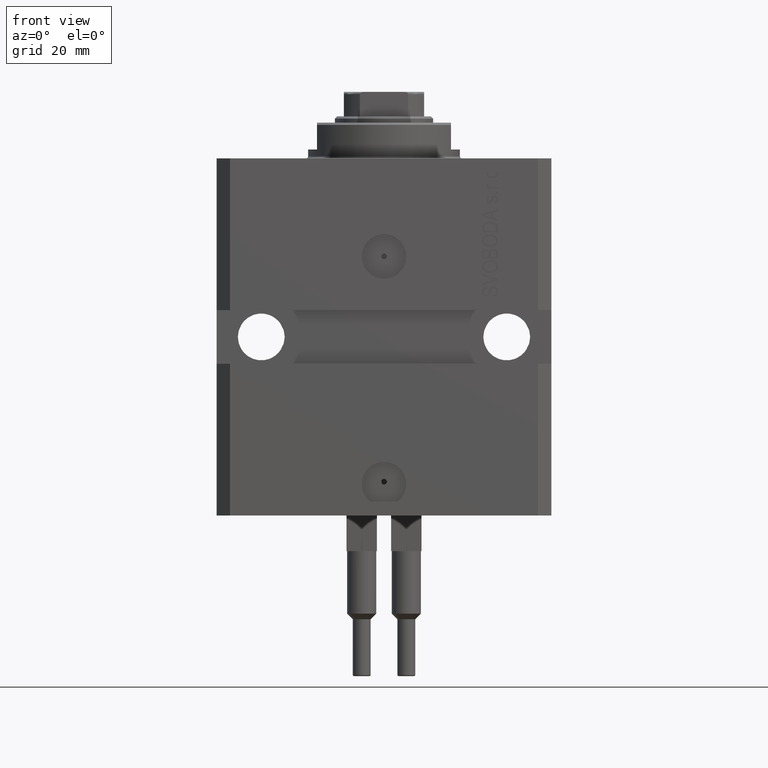
[diagram: clean part render]
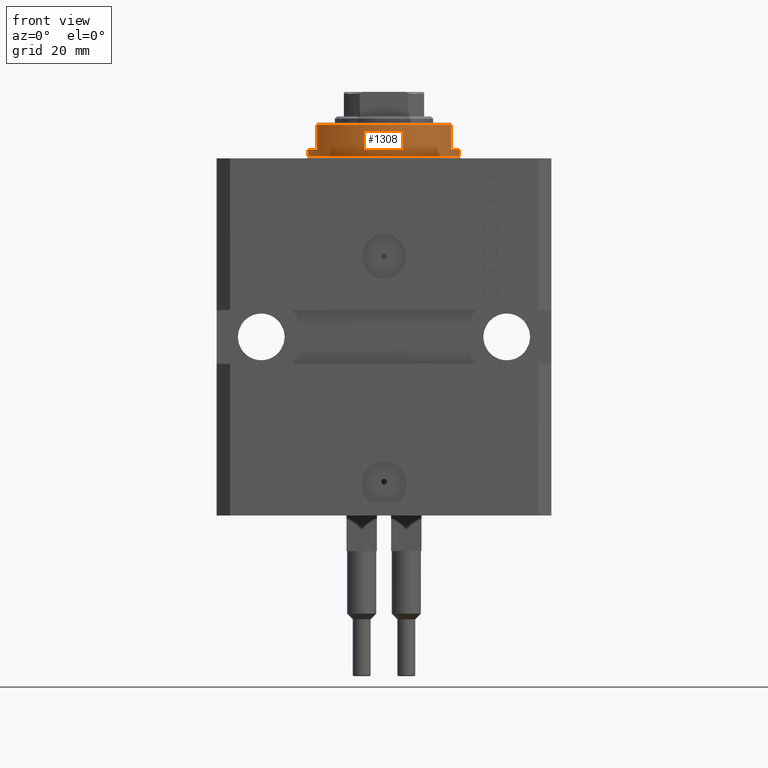
[diagram: same view with one face highlighted and labeled with its STEP entity id]
A machine part, front view. The second image highlights one B-rep face of the part: STEP entity #1308.
In plain terms, the highlighted cylindrical surface (partial cylindrical patch) has radius 17 mm, axis along (0, 0, -1).
Its self-contained STEP definition (entity closure, byte-faithful):
#669 = LINE ( 'NONE', #31038, #7782 ) ;
#781 = CARTESIAN_POINT ( 'NONE',  ( -15.00000000000000000, -8.000000000000001776, -8.000000000000000000 ) ) ;
#1308 = ADVANCED_FACE ( 'NONE', ( #39170 ), #20823, .T. ) ;
#1615 = DIRECTION ( 'NONE',  ( -0.000000000000000000, -0.000000000000000000, 1.000000000000000000 ) ) ;
#4254 = ORIENTED_EDGE ( 'NONE', *, *, #42141, .F. ) ;
#5683 = EDGE_CURVE ( 'NONE', #40005, #19373, #20086, .T. ) ;
#5918 = DIRECTION ( 'NONE',  ( -0.000000000000000000, -0.000000000000000000, 1.000000000000000000 ) ) ;
#7235 = EDGE_CURVE ( 'NONE', #36739, #35097, #35710, .T. ) ;
#7285 = CIRCLE ( 'NONE', #46555, 17.00000000000000000 ) ;
#7782 = VECTOR ( 'NONE', #1615, 1000.000000000000000 ) ;
#8213 = EDGE_CURVE ( 'NONE', #14111, #35097, #12939, .T. ) ;
#8672 = VECTOR ( 'NONE', #30316, 1000.000000000000000 ) ;
#8688 = EDGE_CURVE ( 'NONE', #34956, #14111, #7285, .T. ) ;
#9060 = ORIENTED_EDGE ( 'NONE', *, *, #31347, .T. ) ;
#9279 = ORIENTED_EDGE ( 'NONE', *, *, #42825, .T. ) ;
#9980 = CARTESIAN_POINT ( 'NONE',  ( 15.00000000000000000, -8.000000000000001776, -7.500000000000013323 ) ) ;
#10228 = ORIENTED_EDGE ( 'NONE', *, *, #43642, .F. ) ;
#10239 = DIRECTION ( 'NONE',  ( 1.000000000000000000, 0.000000000000000000, 0.000000000000000000 ) ) ;
#11685 = AXIS2_PLACEMENT_3D ( 'NONE', #16878, #39088, #16186 ) ;
#12097 = LINE ( 'NONE', #781, #34786 ) ;
#12939 = LINE ( 'NONE', #20617, #38076 ) ;
#13922 = CARTESIAN_POINT ( 'NONE',  ( 17.00000000000000000, 0.000000000000000000, -0.5000000000000004441 ) ) ;
#14111 = VERTEX_POINT ( 'NONE', #15958 ) ;
#14468 = CARTESIAN_POINT ( 'NONE',  ( -17.00000000000000000, 2.081899558550500280E-15, -0.5000000000000004441 ) ) ;
#15587 = CARTESIAN_POINT ( 'NONE',  ( 15.00000000000000000, -8.000000000000001776, -8.000000000000000000 ) ) ;
#15958 = CARTESIAN_POINT ( 'NONE',  ( -17.00000000000000000, 2.081899558550500280E-15, -2.000000000000000000 ) ) ;
#16186 = DIRECTION ( 'NONE',  ( -1.000000000000000000, 0.000000000000000000, 0.000000000000000000 ) ) ;
#16190 = DIRECTION ( 'NONE',  ( -1.000000000000000000, 0.000000000000000000, 0.000000000000000000 ) ) ;
#16742 = DIRECTION ( 'NONE',  ( -0.000000000000000000, -0.000000000000000000, -1.000000000000000000 ) ) ;
#16878 = CARTESIAN_POINT ( 'NONE',  ( 0.000000000000000000, 0.000000000000000000, -2.000000000000000000 ) ) ;
#19373 = VERTEX_POINT ( 'NONE', #9980 ) ;
#20086 = CIRCLE ( 'NONE', #40151, 17.00000000000000000 ) ;
#20108 = CARTESIAN_POINT ( 'NONE',  ( 0.000000000000000000, 0.000000000000000000, -7.500000000000013323 ) ) ;
#20405 = ORIENTED_EDGE ( 'NONE', *, *, #8688, .F. ) ;
#20617 = CARTESIAN_POINT ( 'NONE',  ( -17.00000000000000000, 2.081899558550500280E-15, -8.000000000000000000 ) ) ;
#20823 = CYLINDRICAL_SURFACE ( 'NONE', #30741, 17.00000000000000000 ) ;
#21057 = AXIS2_PLACEMENT_3D ( 'NONE', #46423, #16742, #38484 ) ;
#21299 = DIRECTION ( 'NONE',  ( -0.000000000000000000, -0.000000000000000000, 1.000000000000000000 ) ) ;
#24083 = VERTEX_POINT ( 'NONE', #38080 ) ;
#26447 = LINE ( 'NONE', #15587, #8672 ) ;
#26563 = DIRECTION ( 'NONE',  ( 0.000000000000000000, 0.000000000000000000, -1.000000000000000000 ) ) ;
#26805 = DIRECTION ( 'NONE',  ( 0.000000000000000000, 0.000000000000000000, -1.000000000000000000 ) ) ;
#28246 = CARTESIAN_POINT ( 'NONE',  ( -15.00000000000000000, -8.000000000000001776, -7.500000000000014211 ) ) ;
#30316 = DIRECTION ( 'NONE',  ( 0.000000000000000000, 0.000000000000000000, -1.000000000000000000 ) ) ;
#30741 = AXIS2_PLACEMENT_3D ( 'NONE', #35552, #21299, #10239 ) ;
#31038 = CARTESIAN_POINT ( 'NONE',  ( 17.00000000000000000, 0.000000000000000000, -8.000000000000000000 ) ) ;
#31347 = EDGE_CURVE ( 'NONE', #45762, #36739, #669, .T. ) ;
#31465 = ORIENTED_EDGE ( 'NONE', *, *, #5683, .T. ) ;
#32495 = CIRCLE ( 'NONE', #11685, 17.00000000000000000 ) ;
#34786 = VECTOR ( 'NONE', #26563, 1000.000000000000000 ) ;
#34956 = VERTEX_POINT ( 'NONE', #44238 ) ;
#35097 = VERTEX_POINT ( 'NONE', #14468 ) ;
#35552 = CARTESIAN_POINT ( 'NONE',  ( 0.000000000000000000, 0.000000000000000000, -8.000000000000000000 ) ) ;
#35591 = CARTESIAN_POINT ( 'NONE',  ( 17.00000000000000000, 0.000000000000000000, -2.000000000000000000 ) ) ;
#35710 = CIRCLE ( 'NONE', #21057, 17.00000000000000000 ) ;
#36739 = VERTEX_POINT ( 'NONE', #13922 ) ;
#37497 = EDGE_LOOP ( 'NONE', ( #39499, #20405, #9279, #31465, #4254, #10228, #9060, #40137 ) ) ;
#37748 = DIRECTION ( 'NONE',  ( 0.000000000000000000, 0.000000000000000000, 1.000000000000000000 ) ) ;
#38076 = VECTOR ( 'NONE', #5918, 1000.000000000000000 ) ;
#38080 = CARTESIAN_POINT ( 'NONE',  ( 14.99999999999999645, -8.000000000000003553, -2.000000000000000000 ) ) ;
#38484 = DIRECTION ( 'NONE',  ( 1.000000000000000000, 0.000000000000000000, 0.000000000000000000 ) ) ;
#39088 = DIRECTION ( 'NONE',  ( 0.000000000000000000, 0.000000000000000000, -1.000000000000000000 ) ) ;
#39170 = FACE_OUTER_BOUND ( 'NONE', #37497, .T. ) ;
#39499 = ORIENTED_EDGE ( 'NONE', *, *, #8213, .F. ) ;
#40005 = VERTEX_POINT ( 'NONE', #28246 ) ;
#40137 = ORIENTED_EDGE ( 'NONE', *, *, #7235, .T. ) ;
#40151 = AXIS2_PLACEMENT_3D ( 'NONE', #20108, #37748, #45701 ) ;
#42141 = EDGE_CURVE ( 'NONE', #24083, #19373, #26447, .T. ) ;
#42825 = EDGE_CURVE ( 'NONE', #34956, #40005, #12097, .T. ) ;
#43642 = EDGE_CURVE ( 'NONE', #45762, #24083, #32495, .T. ) ;
#44238 = CARTESIAN_POINT ( 'NONE',  ( -14.99999999999999645, -8.000000000000003553, -2.000000000000000000 ) ) ;
#45643 = CARTESIAN_POINT ( 'NONE',  ( 0.000000000000000000, 0.000000000000000000, -2.000000000000000000 ) ) ;
#45701 = DIRECTION ( 'NONE',  ( -1.000000000000000000, 0.000000000000000000, 0.000000000000000000 ) ) ;
#45762 = VERTEX_POINT ( 'NONE', #35591 ) ;
#46423 = CARTESIAN_POINT ( 'NONE',  ( 0.000000000000000000, 0.000000000000000000, -0.5000000000000004441 ) ) ;
#46555 = AXIS2_PLACEMENT_3D ( 'NONE', #45643, #26805, #16190 ) ;